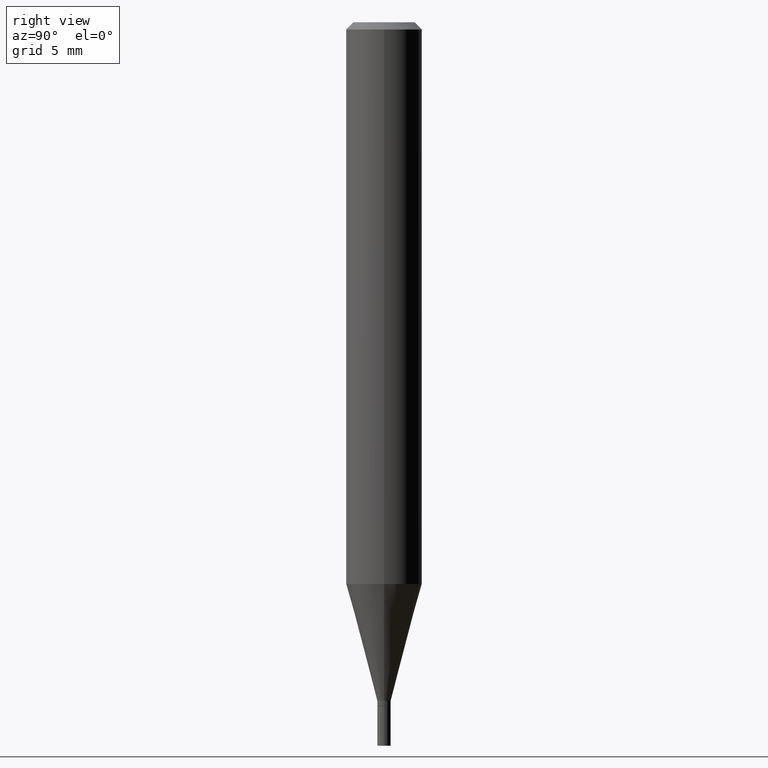
[diagram: clean part render]
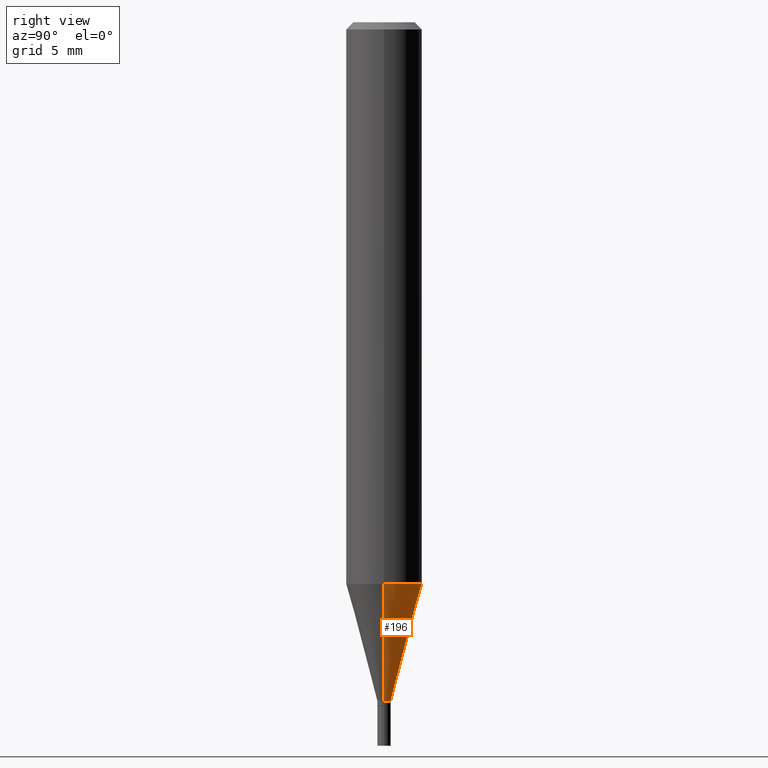
[diagram: same view with one face highlighted and labeled with its STEP entity id]
A machine part, right view. The second image highlights one B-rep face of the part: STEP entity #196.
In plain terms, the highlighted conical surface has half-angle 15 deg.
Its self-contained STEP definition (entity closure, byte-faithful):
#3 = DIRECTION ( 'NONE',  ( 0.2588190451025213501, 1.565188264969621968E-15, 0.9659258262890682012 ) ) ;
#21 = ORIENTED_EDGE ( 'NONE', *, *, #259, .T. ) ;
#40 = CARTESIAN_POINT ( 'NONE',  ( -0.01380000000000019232, -4.160548815540236745E-15, -1.407000000000000028 ) ) ;
#41 = DIRECTION ( 'NONE',  ( 1.000000000000000000, -6.982962677686277755E-15, 0.000000000000000000 ) ) ;
#42 = EDGE_LOOP ( 'NONE', ( #21, #300, #465, #230 ) ) ;
#51 = VECTOR ( 'NONE', #3, 39.37007874015747433 ) ;
#67 = AXIS2_PLACEMENT_3D ( 'NONE', #143, #186, #349 ) ;
#70 = EDGE_CURVE ( 'NONE', #179, #183, #330, .T. ) ;
#75 = VERTEX_POINT ( 'NONE', #137 ) ;
#94 = CARTESIAN_POINT ( 'NONE',  ( 3.440774610302487541E-29, -4.912514243752305891E-15, -1.407000000000000028 ) ) ;
#101 = FACE_OUTER_BOUND ( 'NONE', #42, .T. ) ;
#109 = CARTESIAN_POINT ( 'NONE',  ( -0.01380000000000019232, -4.814459346217411032E-15, -1.407000000000000028 ) ) ;
#114 = EDGE_CURVE ( 'NONE', #183, #75, #297, .T. ) ;
#134 = DIRECTION ( 'NONE',  ( -2.445468806185136597E-29, 3.491481338843145583E-15, 1.000000000000000000 ) ) ;
#137 = CARTESIAN_POINT ( 'NONE',  ( -0.07875000000000000056, -3.506638284863064036E-15, -1.164603300048402845 ) ) ;
#143 = CARTESIAN_POINT ( 'NONE',  ( 2.848001041848637947E-29, -4.066190689274142838E-15, -1.164603300048402845 ) ) ;
#174 = CARTESIAN_POINT ( 'NONE',  ( 0.07875000000000000056, -4.616099000141935394E-15, -1.164603300048402845 ) ) ;
#176 = DIRECTION ( 'NONE',  ( -2.445468806185136597E-29, 3.491481338843145583E-15, 1.000000000000000000 ) ) ;
#179 = VERTEX_POINT ( 'NONE', #437 ) ;
#183 = VERTEX_POINT ( 'NONE', #174 ) ;
#186 = DIRECTION ( 'NONE',  ( -2.445468806185136597E-29, 3.491481338843145583E-15, 1.000000000000000000 ) ) ;
#192 = VECTOR ( 'NONE', #382, 39.37007874015747433 ) ;
#196 = ADVANCED_FACE ( 'NONE', ( #101 ), #273, .T. ) ;
#221 = AXIS2_PLACEMENT_3D ( 'NONE', #94, #134, #41 ) ;
#230 = ORIENTED_EDGE ( 'NONE', *, *, #70, .F. ) ;
#236 = CIRCLE ( 'NONE', #364, 0.01380000000000019232 ) ;
#259 = EDGE_CURVE ( 'NONE', #179, #324, #236, .T. ) ;
#260 = CARTESIAN_POINT ( 'NONE',  ( 0.01380000000000019232, -5.008879128704377621E-15, -1.407000000000000028 ) ) ;
#273 = CONICAL_SURFACE ( 'NONE', #221, 0.01380000000000019232, 0.2617993877991500740 ) ;
#277 = EDGE_CURVE ( 'NONE', #324, #75, #450, .T. ) ;
#297 = CIRCLE ( 'NONE', #67, 0.07875000000000000056 ) ;
#300 = ORIENTED_EDGE ( 'NONE', *, *, #277, .T. ) ;
#303 = CARTESIAN_POINT ( 'NONE',  ( 3.440774610302487541E-29, -4.912514243752305891E-15, -1.407000000000000028 ) ) ;
#324 = VERTEX_POINT ( 'NONE', #40 ) ;
#330 = LINE ( 'NONE', #260, #51 ) ;
#339 = DIRECTION ( 'NONE',  ( 1.000000000000000000, -6.982962677686277755E-15, 0.000000000000000000 ) ) ;
#349 = DIRECTION ( 'NONE',  ( 1.000000000000000000, -6.982962677686268288E-15, 0.000000000000000000 ) ) ;
#364 = AXIS2_PLACEMENT_3D ( 'NONE', #303, #176, #339 ) ;
#382 = DIRECTION ( 'NONE',  ( -0.2588190451025213501, 5.211531920934551042E-15, 0.9659258262890682012 ) ) ;
#437 = CARTESIAN_POINT ( 'NONE',  ( 0.01380000000000019232, -5.008879128704377621E-15, -1.407000000000000028 ) ) ;
#450 = LINE ( 'NONE', #109, #192 ) ;
#465 = ORIENTED_EDGE ( 'NONE', *, *, #114, .F. ) ;